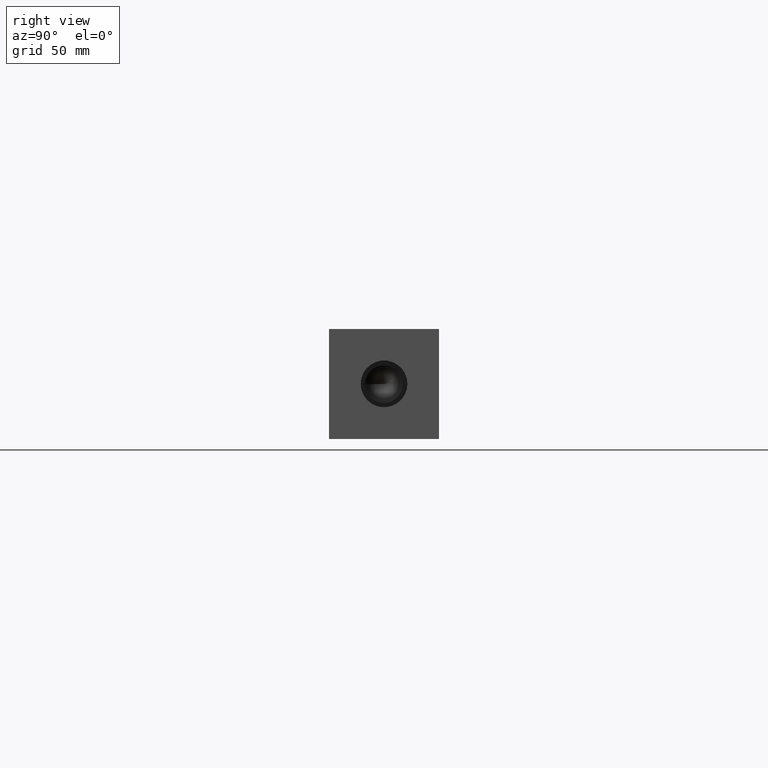
[diagram: clean part render]
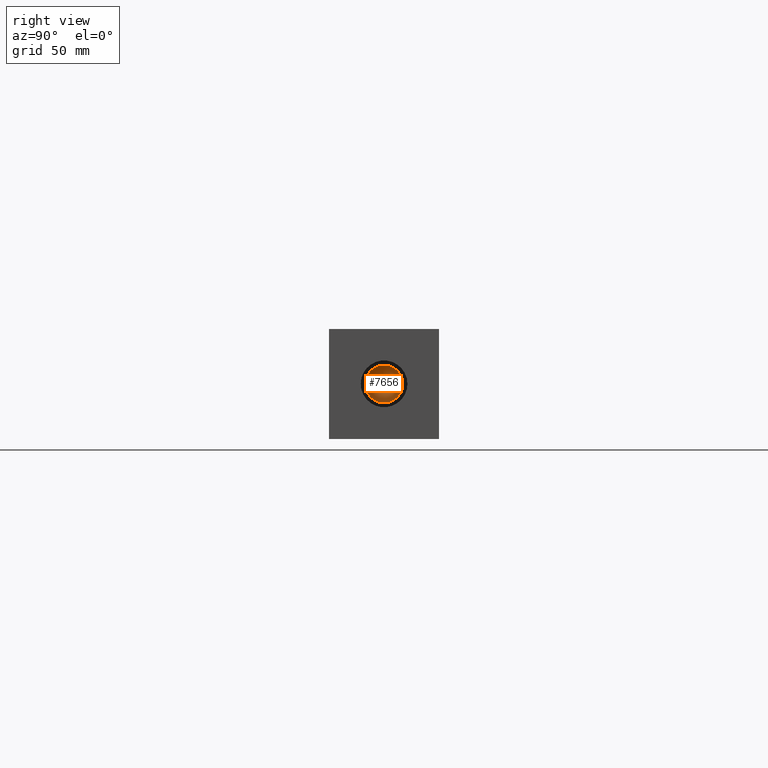
[diagram: same view with one face highlighted and labeled with its STEP entity id]
A machine part, right view. The second image highlights one B-rep face of the part: STEP entity #7656.
In plain terms, the highlighted conical surface has half-angle 60 deg.
Its self-contained STEP definition (entity closure, byte-faithful):
#26=CONICAL_SURFACE('',#8055,4.3688,1.0471975511966);
#182=CIRCLE('',#8056,8.7376);
#183=CIRCLE('',#8057,8.7376);
#861=FACE_OUTER_BOUND('',#1304,.T.);
#1304=EDGE_LOOP('',(#6762,#6763,#6764,#6765));
#2011=LINE('',#13258,#2699);
#2699=VECTOR('',#9505,4.3688);
#3655=VERTEX_POINT('',#13254);
#3656=VERTEX_POINT('',#13255);
#3657=VERTEX_POINT('',#13257);
#4705=EDGE_CURVE('',#3655,#3656,#182,.T.);
#4706=EDGE_CURVE('',#3656,#3657,#2011,.T.);
#4707=EDGE_CURVE('',#3656,#3655,#183,.T.);
#6762=ORIENTED_EDGE('',*,*,#4705,.T.);
#6763=ORIENTED_EDGE('',*,*,#4706,.T.);
#6764=ORIENTED_EDGE('',*,*,#4706,.F.);
#6765=ORIENTED_EDGE('',*,*,#4707,.T.);
#7656=ADVANCED_FACE('',(#861),#26,.F.);
#8055=AXIS2_PLACEMENT_3D('',#13253,#9501,#9502);
#8056=AXIS2_PLACEMENT_3D('',#13256,#9503,#9504);
#8057=AXIS2_PLACEMENT_3D('',#13259,#9506,#9507);
#9501=DIRECTION('center_axis',(1.,0.,0.));
#9502=DIRECTION('ref_axis',(0.,1.,0.));
#9503=DIRECTION('center_axis',(1.,0.,0.));
#9504=DIRECTION('ref_axis',(0.,1.,0.));
#9505=DIRECTION('',(-0.5,0.866025403784439,1.06057523872491E-16));
#9506=DIRECTION('center_axis',(1.,0.,0.));
#9507=DIRECTION('ref_axis',(0.,1.,0.));
#13253=CARTESIAN_POINT('Origin',(311.806202143964,25.4,25.4));
#13254=CARTESIAN_POINT('',(314.32853,34.1376,25.4));
#13255=CARTESIAN_POINT('',(314.32853,16.6624,25.4));
#13256=CARTESIAN_POINT('Origin',(314.32853,25.4,25.4));
#13257=CARTESIAN_POINT('',(309.283874287929,25.4,25.4));
#13258=CARTESIAN_POINT('',(311.806202143964,21.0312,25.4));
#13259=CARTESIAN_POINT('Origin',(314.32853,25.4,25.4));